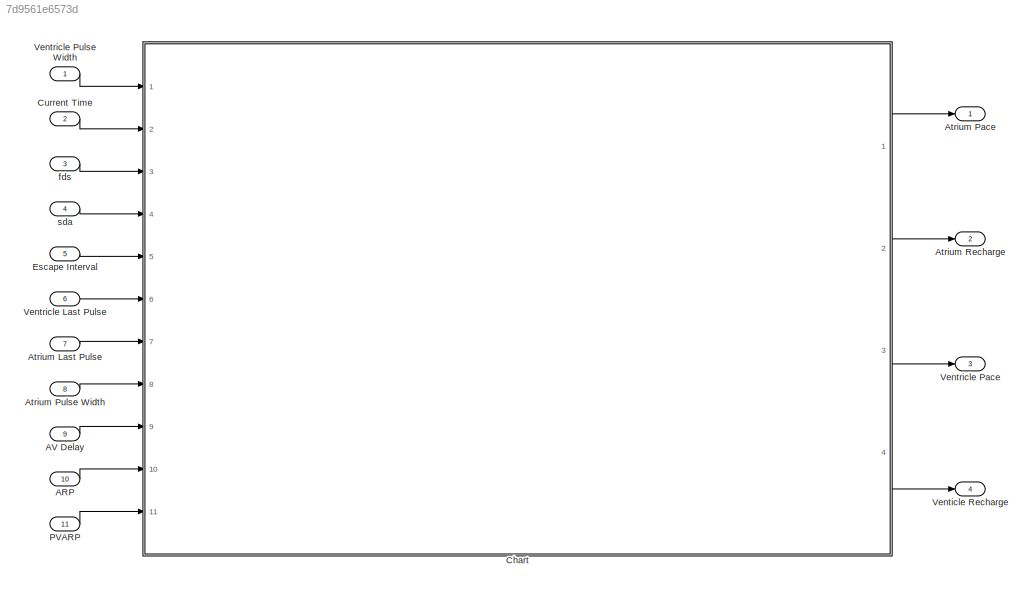
MODEL slx_7d9561e6573d
KIND model
CONFIG AbsTol = auto
CONFIG EnableMultiTasking = off
CONFIG FixedStep = auto
CONFIG MaxStep = auto
CONFIG MinStep = auto
CONFIG RelTol = 1e-3
CONFIG SampleTimeConstraint = Unconstrained
CONFIG Solver = VariableStepAuto
CONFIG SolverName = VariableStepAuto
CONFIG StartTime = 0.0
CONFIG StopTime = 10.0
BLOCK [Inport] ARP
  Port = 10
BLOCK [Inport] AV Delay
  Port = 9
BLOCK [Inport] Atrium Last Pulse
  Port = 7
BLOCK [Outport] Atrium Pace
BLOCK [Inport] Atrium Pulse Width
  Port = 8
BLOCK [Outport] Atrium Recharge
  Port = 2
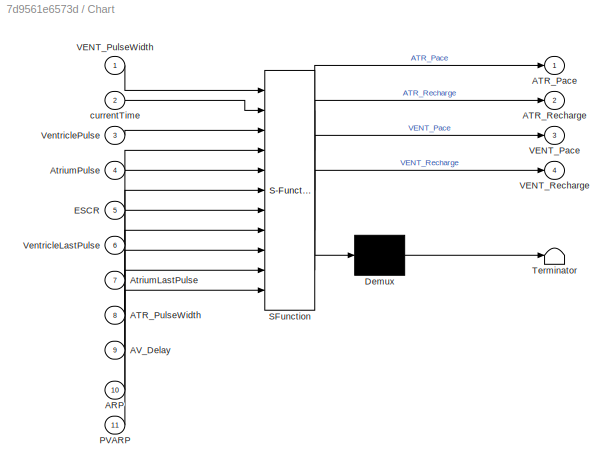
BLOCK [SubSystem] Chart
  ErrorFcn = Stateflow.Translate.translate
  PermitHierarchicalResolution = ExplicitOnly
  Ports = [11, 4]
  RequestExecContextInheritance = off
  SFBlockType = Chart
  TreatAsAtomicUnit = on
BLOCK [Demux] Chart/ Demux 
  Outputs = 1
  Ports = [1, 1]
BLOCK [S-Function] Chart/ SFunction 
  EnableBusSupport = off
  FunctionName = sf_sfun
  PortCounts = [11 5]
  Ports = [11, 5]
  SFcnIsStateOwnerBlock = off
  SFunctionDeploymentMode = off
  Tag = Stateflow S-Function 3
BLOCK [Terminator] Chart/ Terminator 
BLOCK [Inport] Chart/ARP
  Port = 10
BLOCK [Outport] Chart/ATR_Pace
BLOCK [Inport] Chart/ATR_PulseWidth
  Port = 8
BLOCK [Outport] Chart/ATR_Recharge
  Port = 2
BLOCK [Inport] Chart/AV_Delay
  Port = 9
BLOCK [Inport] Chart/AtriumLastPulse
  Port = 7
BLOCK [Inport] Chart/AtriumPulse
  Port = 4
BLOCK [Inport] Chart/ESCR
  Port = 5
BLOCK [Inport] Chart/PVARP
  Port = 11
BLOCK [Outport] Chart/VENT_Pace
  Port = 3
BLOCK [Inport] Chart/VENT_PulseWidth
BLOCK [Outport] Chart/VENT_Recharge
  Port = 4
BLOCK [Inport] Chart/VentricleLastPulse
  Port = 6
BLOCK [Inport] Chart/VentriclePulse
  Port = 3
BLOCK [Inport] Chart/currentTime
  Port = 2
BLOCK [Inport] Current Time
  Port = 2
BLOCK [Inport] Escape Interval
  Port = 5
BLOCK [Inport] PVARP
  Port = 11
BLOCK [Outport] Venticle Recharge
  Port = 4
BLOCK [Inport] Ventricle Last Pulse
  Port = 6
BLOCK [Outport] Ventricle Pace
  Port = 3
BLOCK [Inport] Ventricle Pulse Width
BLOCK [Inport] fds
  Port = 3
BLOCK [Inport] sda
  Port = 4
LINE ARP:1 -> Chart:10
LINE AV Delay:1 -> Chart:9
LINE Atrium Last Pulse:1 -> Chart:7
LINE Atrium Pulse Width:1 -> Chart:8
LINE Chart:1 -> Atrium Pace:1
LINE Chart:2 -> Atrium Recharge:1
LINE Chart:3 -> Ventricle Pace:1
LINE Chart:4 -> Venticle Recharge:1
LINE Current Time:1 -> Chart:2
LINE Escape Interval:1 -> Chart:5
LINE PVARP:1 -> Chart:11
LINE Ventricle Last Pulse:1 -> Chart:6
LINE Ventricle Pulse Width:1 -> Chart:1
LINE fds:1 -> Chart:3
LINE sda:1 -> Chart:4
CHART Chart states=15 transitions=17
  STATE_LABEL 'Need to implenment a no skip pace if it is in the deadzone (use ARP)'
  STATE_LABEL 'ATR_Recharge\nentry:\nATR_Recharge=2;'
  STATE_LABEL 'ATR_Recharge_init\nentry:\nATR_Pace=false;\nVENT_Pace=false;\nATR_Recharge=1;\nVENT_Recharge=0;'
  STATE_LABEL 'ATR_Pace\nentry:\nATR_Pace=true;\nATR_Recharge=0;'
  STATE_LABEL 'VENT_Recharge_init\nentry:\nATR_Pace=false;\nVENT_Pace=false;\nVENT_Recharge=1;\nATR_Recharge=0;\n'
  STATE_LABEL 'VENT_Pace\nentry:\nVENT_Pace=true;\nVENT_Recharge=0;\n'
  STATE_LABEL 'VENT_Recharge\nentry:\nVENT_Recharge=2;'
  STATE_LABEL 'there is the possiblility that the stateflow gets stuck at the VENT_Recharge and ATR_Recharge states if the heart is pacing normally'
  STATE_LABEL 'ATR_Recharge_init1\nentry:\nATR_Pace=false;\nVENT_Pace=false;\nATR_Recharge=1;'
  STATE_LABEL 'ATR_Recharge1\nentry:\nATR_Recharge=2;'
  STATE_LABEL 'another possiblility'
  STATE_LABEL 'another possiblility'
  STATE_LABEL 'VENT_Recharge_init1\nentry:\nATR_Pace=false;\nVENT_Pace=false;\nVENT_Recharge=1;\n'
  STATE_LABEL 'VENT_Recharge1\nentry:\nVENT_Recharge=2;'
  STATE_LABEL 'VENT_Pace1\nentry:\nVENT_Pace=true;\nVENT_Recharge=0;\n'
  STATE_LABEL 'ATR_Pace1\nentry:\nATR_Pace=true;\nATR_Recharge=0;'
CHART  states=0 transitions=0
